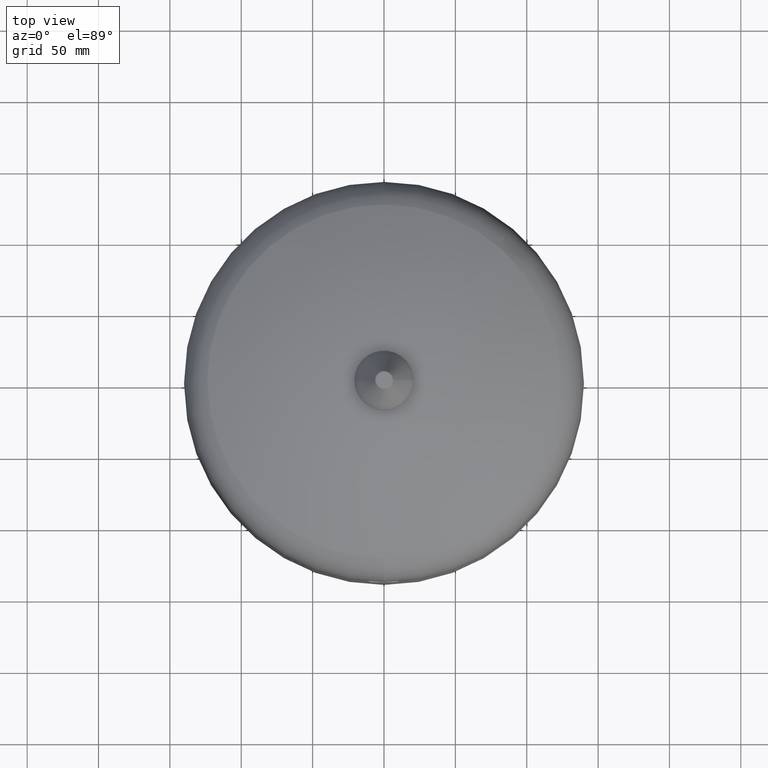
[diagram: clean part render]
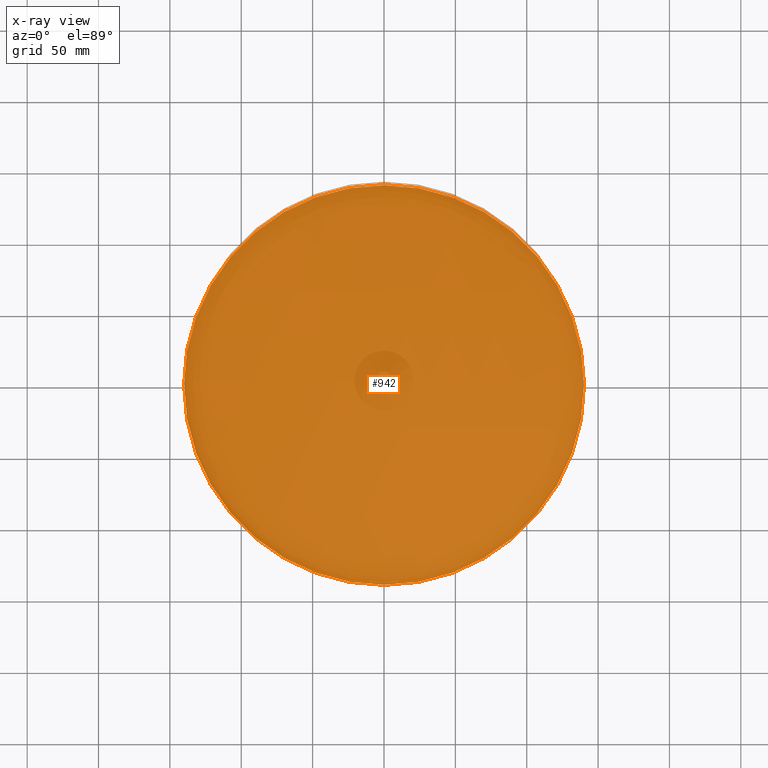
[diagram: x-ray — body ghosted, one internal face saturated and labeled with its STEP entity id]
A machine part, top view, then the same camera in x-ray: the body is ghosted and one INTERNAL B-rep face — a face not visible from any outside direction — is saturated and labeled: STEP entity #942.
In plain terms, the highlighted planar face has unit normal (0, 0, 1).
Its self-contained STEP definition (entity closure, byte-faithful):
#780=CARTESIAN_POINT('',(-139.999999999999970,-5.220983E-030,108.000000000000030));
#781=VERTEX_POINT('',#780);
#790=CARTESIAN_POINT('',(140.0,1.714449E-014,107.999999999999970));
#791=VERTEX_POINT('',#790);
#792=CARTESIAN_POINT('',(0.0,0.0,108.0));
#793=DIRECTION('',(0.0,0.0,1.0));
#794=DIRECTION('',(-1.0,0.0,0.0));
#795=AXIS2_PLACEMENT_3D('',#792,#793,#794);
#796=CIRCLE('',#795,140.0);
#797=EDGE_CURVE('',#791,#781,#796,.T.);
#923=CARTESIAN_POINT('',(0.0,0.0,108.0));
#924=DIRECTION('',(0.0,0.0,1.0));
#925=DIRECTION('',(-1.0,0.0,0.0));
#926=AXIS2_PLACEMENT_3D('',#923,#924,#925);
#927=CIRCLE('',#926,140.0);
#928=EDGE_CURVE('',#781,#791,#927,.T.);
#933=CARTESIAN_POINT('',(-70.0,-7.831475E-030,108.000000000000060));
#934=DIRECTION('',(0.0,0.0,1.0));
#935=DIRECTION('',(0.0,-1.0,0.0));
#936=AXIS2_PLACEMENT_3D('',#933,#934,#935);
#937=PLANE('',#936);
#938=ORIENTED_EDGE('',*,*,#928,.T.);
#939=ORIENTED_EDGE('',*,*,#797,.T.);
#940=EDGE_LOOP('',(#938,#939));
#941=FACE_OUTER_BOUND('',#940,.T.);
#942=ADVANCED_FACE('',(#941),#937,.T.);